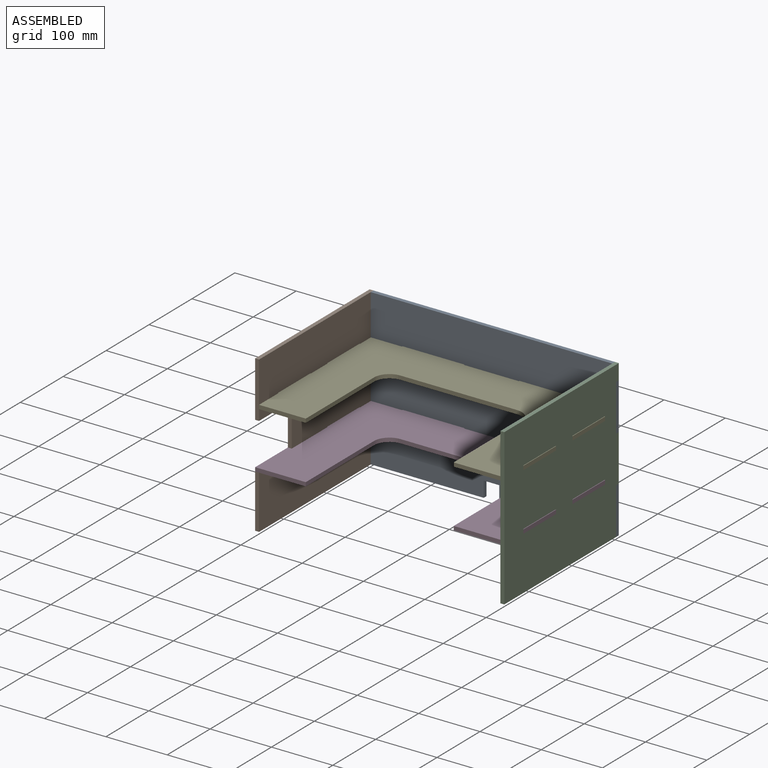
[diagram: assembled view]
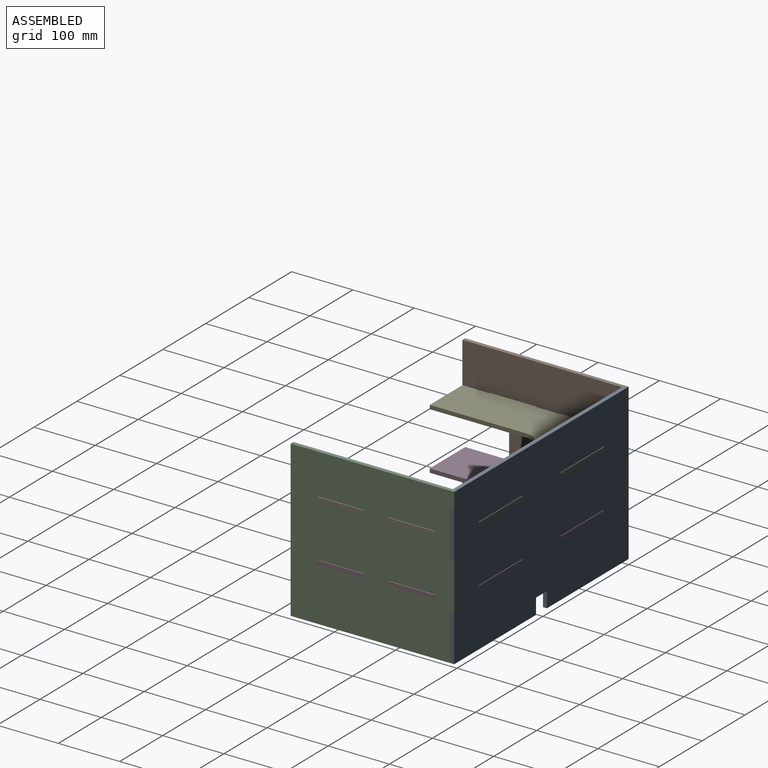
[diagram: assembled view, second angle]
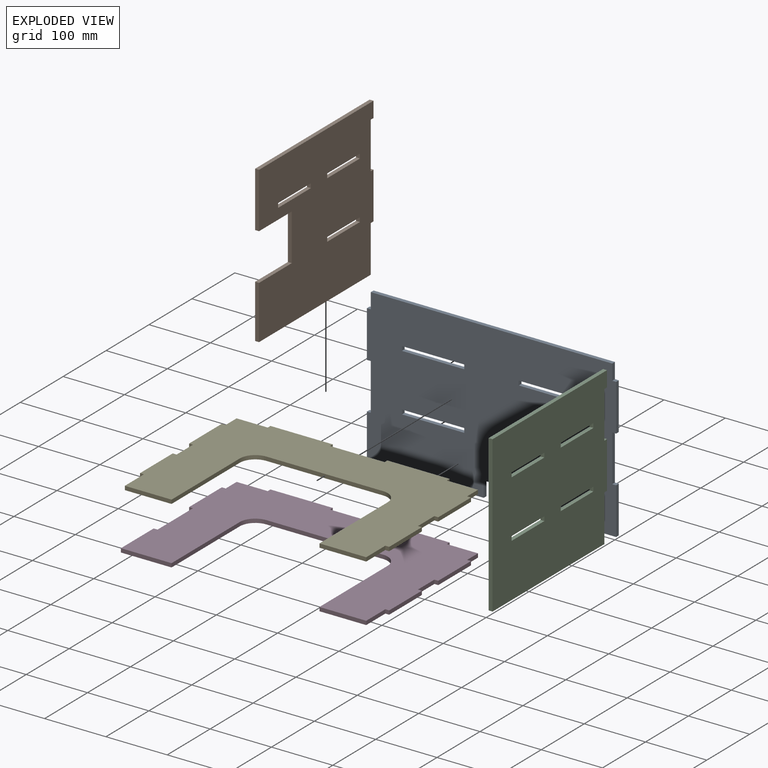
[diagram: exploded view]
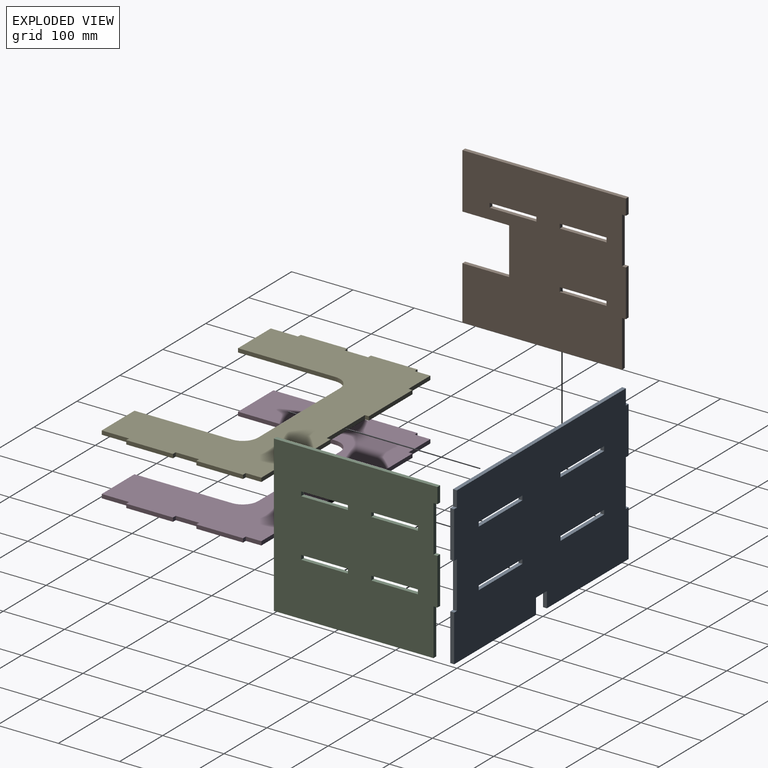
[diagram: exploded view, second angle]
ASSEMBLY  parts=5 mates=12
PART A: 38 faces, bbox 406.4x6.4x254 mm
  f0: plane 76.2x6.35mm, normal (-1,0,0), area 483.9mm2, adj f1,f35,f36,f37
  f1: plane 190.5x6.35mm, normal (0,0,-1), area 1209.7mm2, adj f0,f2,f36,f37
  f2: plane 25.4x6.35mm, normal (1,0,0), area 161.3mm2, adj f1,f3,f36,f37
  f3: plane 25.4x6.35mm, normal (0,0,-1), area 161.3mm2, adj f2,f4,f36,f37
  f4: plane 25.4x6.35mm, normal (-1,0,0), area 161.3mm2, adj f3,f5,f36,f37
  f5: plane 190.5x6.35mm, normal (0,0,-1), area 1209.7mm2, adj f4,f6,f36,f37
  f6: plane 76.2x6.35mm, normal (1,0,0), area 483.9mm2, adj f5,f7,f36,f37
  f7: plane 6.35x6.35mm, normal (0,0,1), area 40.3mm2, adj f6,f8,f36,f37
  f8: plane 76.2x6.35mm, normal (1,0,0), area 483.9mm2, adj f7,f9,f36,f37
  f9: plane 6.35x6.35mm, normal (0,0,-1), area 40.3mm2, adj f8,f10,f36,f37
  f10: plane 76.2x6.35mm, normal (1,0,0), area 483.9mm2, adj f9,f11,f36,f37
  f11: plane 6.35x6.35mm, normal (0,0,1), area 40.3mm2, adj f10,f12,f36,f37
  f12: plane 25.4x6.35mm, normal (1,0,0), area 161.3mm2, adj f11,f13,f36,f37
  f13: plane 393.7x6.35mm, normal (0,0,1), area 2500mm2, adj f12,f14,f36,f37
  f14: plane 25.4x6.35mm, normal (-1,0,0), area 161.3mm2, adj f13,f15,f36,f37
  f15: plane 6.35x6.35mm, normal (0,0,1), area 40.3mm2, adj f14,f16,f36,f37
  f16: plane 76.2x6.35mm, normal (-1,0,0), area 483.9mm2, adj f15,f17,f36,f37
  f17: plane 6.35x6.35mm, normal (0,0,-1), area 40.3mm2, adj f16,f18,f36,f37
  f18: plane 76.2x6.35mm, normal (-1,0,0), area 483.9mm2, adj f17,f35,f36,f37
  f19: plane 7.11x6.35mm, normal (1,0,0), area 45.2mm2, adj f20,f31,f36,f37
  f20: plane 101.6x6.35mm, normal (0,0,-1), area 645.2mm2, adj f19,f21,f36,f37
  f21: plane 7.11x6.35mm, normal (-1,0,0), area 45.2mm2, adj f20,f31,f36,f37
  f22: plane 7.11x6.35mm, normal (1,0,0), area 45.2mm2, adj f23,f32,f36,f37
  f23: plane 101.6x6.35mm, normal (0,0,-1), area 645.2mm2, adj f22,f24,f36,f37
  f24: plane 7.11x6.35mm, normal (-1,0,0), area 45.2mm2, adj f23,f32,f36,f37
  f25: plane 7.11x6.35mm, normal (1,0,0), area 45.2mm2, adj f26,f33,f36,f37
  f26: plane 101.6x6.35mm, normal (0,0,-1), area 645.2mm2, adj f25,f27,f36,f37
  f27: plane 7.11x6.35mm, normal (-1,0,0), area 45.2mm2, adj f26,f33,f36,f37
  f28: plane 7.11x6.35mm, normal (1,0,0), area 45.2mm2, adj f29,f34,f36,f37
  f29: plane 101.6x6.35mm, normal (0,0,-1), area 645.2mm2, adj f28,f30,f36,f37
  f30: plane 7.11x6.35mm, normal (-1,0,0), area 45.2mm2, adj f29,f34,f36,f37
  f31: plane 101.6x6.35mm, normal (0,0,1), area 645.2mm2, adj f19,f21,f36,f37
  f32: plane 101.6x6.35mm, normal (0,0,1), area 645.2mm2, adj f22,f24,f36,f37
  f33: plane 101.6x6.35mm, normal (0,0,1), area 645.2mm2, adj f25,f27,f36,f37
  f34: plane 101.6x6.35mm, normal (0,0,1), area 645.2mm2, adj f28,f30,f36,f37
  f35: plane 6.35x6.35mm, normal (0,0,1), area 40.3mm2, adj f0,f18,f36,f37
  f36: plane 406.4x254mm, normal (0,-1,0), area 98399.8mm2, adj f0,f1,f2,f3,f4,f5,f6,f7
  f37: plane 406.4x254mm, normal (0,1,0), area 98399.8mm2, adj f0,f1,f2,f3,f4,f5,f6,f7
PART B: 28 faces, bbox 266.7x6.4x254 mm
  f0: plane 7.11x6.35mm, normal (1,0,0), area 45.2mm2, adj f1,f25,f26,f27
  f1: plane 76.2x6.35mm, normal (0,0,-1), area 483.9mm2, adj f0,f2,f26,f27
  f2: plane 7.11x6.35mm, normal (-1,0,0), area 45.2mm2, adj f1,f25,f26,f27
  f3: plane 7.11x6.35mm, normal (1,0,0), area 45.2mm2, adj f4,f22,f26,f27
  f4: plane 76.2x6.35mm, normal (0,0,-1), area 483.9mm2, adj f3,f5,f26,f27
  f5: plane 7.11x6.35mm, normal (-1,0,0), area 45.2mm2, adj f4,f22,f26,f27
  f6: plane 7.11x6.35mm, normal (1,0,0), area 45.2mm2, adj f7,f23,f26,f27
  f7: plane 76.2x6.35mm, normal (0,0,-1), area 483.9mm2, adj f6,f8,f26,f27
  f8: plane 7.11x6.35mm, normal (-1,0,0), area 45.2mm2, adj f7,f23,f26,f27
  f9: plane 87.31x6.35mm, normal (-1,0,0), area 554.4mm2, adj f10,f24,f26,f27
  f10: plane 260.35x6.35mm, normal (0,0,-1), area 1653.2mm2, adj f9,f11,f26,f27
  f11: plane 76.2x6.35mm, normal (1,0,0), area 483.9mm2, adj f10,f12,f26,f27
  f12: plane 6.35x6.35mm, normal (0,0,-1), area 40.3mm2, adj f11,f13,f26,f27
  f13: plane 76.2x6.35mm, normal (1,0,0), area 483.9mm2, adj f12,f14,f26,f27
  f14: plane 6.35x6.35mm, normal (0,0,1), area 40.3mm2, adj f13,f15,f26,f27
  f15: plane 76.2x6.35mm, normal (1,0,0), area 483.9mm2, adj f14,f16,f26,f27
  f16: plane 6.35x6.35mm, normal (0,0,-1), area 40.3mm2, adj f15,f17,f26,f27
  f17: plane 25.4x6.35mm, normal (1,0,0), area 161.3mm2, adj f16,f18,f26,f27
  f18: plane 266.7x6.35mm, normal (0,0,1), area 1693.5mm2, adj f17,f19,f26,f27
  f19: plane 90.49x6.35mm, normal (-1,0,0), area 574.6mm2, adj f18,f20,f26,f27
  f20: plane 76.2x6.35mm, normal (0,0,-1), area 483.9mm2, adj f19,f21,f26,f27
  f21: plane 76.2x6.35mm, normal (-1,0,0), area 483.9mm2, adj f20,f24,f26,f27
  f22: plane 76.2x6.35mm, normal (0,0,1), area 483.9mm2, adj f3,f5,f26,f27
  f23: plane 76.2x6.35mm, normal (0,0,1), area 483.9mm2, adj f6,f8,f26,f27
  f24: plane 76.2x6.35mm, normal (0,0,1), area 483.9mm2, adj f9,f21,f26,f27
  f25: plane 76.2x6.35mm, normal (0,0,1), area 483.9mm2, adj f0,f2,f26,f27
  f26: plane 266.7x254mm, normal (0,-1,0), area 59341.8mm2, adj f0,f1,f2,f3,f4,f5,f6,f7
  f27: plane 266.7x254mm, normal (0,1,0), area 59341.8mm2, adj f0,f1,f2,f3,f4,f5,f6,f7
PART C: 28 faces, bbox 266.7x6.4x254 mm
  f0: plane 7.11x6.35mm, normal (1,0,0), area 45.2mm2, adj f1,f25,f26,f27
  f1: plane 76.2x6.35mm, normal (0,0,-1), area 483.9mm2, adj f0,f2,f26,f27
  f2: plane 7.11x6.35mm, normal (-1,0,0), area 45.2mm2, adj f1,f25,f26,f27
  f3: plane 7.11x6.35mm, normal (1,0,0), area 45.2mm2, adj f4,f21,f26,f27
  f4: plane 76.2x6.35mm, normal (0,0,-1), area 483.9mm2, adj f3,f5,f26,f27
  f5: plane 7.11x6.35mm, normal (-1,0,0), area 45.2mm2, adj f4,f21,f26,f27
  f6: plane 7.11x6.35mm, normal (1,0,0), area 45.2mm2, adj f7,f22,f26,f27
  f7: plane 76.2x6.35mm, normal (0,0,-1), area 483.9mm2, adj f6,f8,f26,f27
  f8: plane 7.11x6.35mm, normal (-1,0,0), area 45.2mm2, adj f7,f22,f26,f27
  f9: plane 7.11x6.35mm, normal (1,0,0), area 45.2mm2, adj f10,f23,f26,f27
  f10: plane 76.2x6.35mm, normal (0,0,-1), area 483.9mm2, adj f9,f11,f26,f27
  f11: plane 7.11x6.35mm, normal (-1,0,0), area 45.2mm2, adj f10,f23,f26,f27
  f12: plane 254x6.35mm, normal (-1,0,0), area 1612.9mm2, adj f13,f24,f26,f27
  f13: plane 260.35x6.35mm, normal (0,0,-1), area 1653.2mm2, adj f12,f14,f26,f27
  f14: plane 76.2x6.35mm, normal (1,0,0), area 483.9mm2, adj f13,f15,f26,f27
  f15: plane 6.35x6.35mm, normal (0,0,-1), area 40.3mm2, adj f14,f16,f26,f27
  f16: plane 76.2x6.35mm, normal (1,0,0), area 483.9mm2, adj f15,f17,f26,f27
  f17: plane 6.35x6.35mm, normal (0,0,1), area 40.3mm2, adj f16,f18,f26,f27
  f18: plane 76.2x6.35mm, normal (1,0,0), area 483.9mm2, adj f17,f19,f26,f27
  f19: plane 6.35x6.35mm, normal (0,0,-1), area 40.3mm2, adj f18,f20,f26,f27
  f20: plane 25.4x6.35mm, normal (1,0,0), area 161.3mm2, adj f19,f24,f26,f27
  f21: plane 76.2x6.35mm, normal (0,0,1), area 483.9mm2, adj f3,f5,f26,f27
  f22: plane 76.2x6.35mm, normal (0,0,1), area 483.9mm2, adj f6,f8,f26,f27
  f23: plane 76.2x6.35mm, normal (0,0,1), area 483.9mm2, adj f9,f11,f26,f27
  f24: plane 266.7x6.35mm, normal (0,0,1), area 1693.5mm2, adj f12,f20,f26,f27
  f25: plane 76.2x6.35mm, normal (0,0,1), area 483.9mm2, adj f0,f2,f26,f27
  f26: plane 266.7x254mm, normal (0,-1,0), area 64606.3mm2, adj f0,f1,f2,f3,f4,f5,f6,f7
  f27: plane 266.7x254mm, normal (0,1,0), area 64606.3mm2, adj f0,f1,f2,f3,f4,f5,f6,f7
PART D: 34 faces, bbox 406.4x6.4x266.7 mm
  f0: plane 6.35x6.35mm, normal (-1,0,0), area 40.3mm2, adj f1,f29,f30,f31
  f1: plane 50.8x6.35mm, normal (0,0,1), area 322.6mm2, adj f0,f2,f30,f31
  f2: plane 25.4x6.35mm, normal (-1,0,0), area 161.3mm2, adj f1,f3,f30,f31
  f3: plane 6.35x6.35mm, normal (0,0,1), area 40.3mm2, adj f2,f4,f30,f31
  f4: plane 76.2x6.35mm, normal (-1,0,0), area 483.9mm2, adj f3,f5,f30,f31
  f5: plane 6.35x6.35mm, normal (0,0,-1), area 40.3mm2, adj f4,f6,f30,f31
  f6: plane 82.55x6.35mm, normal (-1,0,0), area 524.2mm2, adj f5,f7,f30,f31
  f7: plane 6.35x6.35mm, normal (0,0,1), area 40.3mm2, adj f6,f8,f30,f31
  f8: plane 76.2x6.35mm, normal (-1,0,0), area 483.9mm2, adj f7,f9,f30,f31
  f9: plane 82.55x6.35mm, normal (0,0,-1), area 524.2mm2, adj f8,f10,f30,f31
  f10: plane 158.75x6.35mm, normal (1,0,0), area 1008.1mm2, adj f9,f30,f31,f32
  f11: plane 190.5x6.35mm, normal (0,0,-1), area 1209.7mm2, adj f30,f31,f32,f33
  f12: plane 158.75x6.35mm, normal (-1,0,0), area 1008.1mm2, adj f13,f30,f31,f33
  f13: plane 76.2x6.35mm, normal (0,0,-1), area 483.9mm2, adj f12,f14,f30,f31
  f14: plane 44.45x6.35mm, normal (1,0,0), area 282.3mm2, adj f13,f15,f30,f31
  f15: plane 6.35x6.35mm, normal (0,0,-1), area 40.3mm2, adj f14,f16,f30,f31
  f16: plane 76.2x6.35mm, normal (1,0,0), area 483.9mm2, adj f15,f17,f30,f31
  f17: plane 6.35x6.35mm, normal (0,0,1), area 40.3mm2, adj f16,f18,f30,f31
  f18: plane 38.1x6.35mm, normal (1,0,0), area 241.9mm2, adj f17,f19,f30,f31
  f19: plane 6.35x6.35mm, normal (0,0,-1), area 40.3mm2, adj f18,f20,f30,f31
  f20: plane 76.2x6.35mm, normal (1,0,0), area 483.9mm2, adj f19,f21,f30,f31
  f21: plane 6.35x6.35mm, normal (0,0,1), area 40.3mm2, adj f20,f22,f30,f31
  f22: plane 25.4x6.35mm, normal (1,0,0), area 161.3mm2, adj f21,f23,f30,f31
  f23: plane 50.8x6.35mm, normal (0,0,1), area 322.6mm2, adj f22,f24,f30,f31
  f24: plane 6.35x6.35mm, normal (1,0,0), area 40.3mm2, adj f23,f25,f30,f31
  f25: plane 101.6x6.35mm, normal (0,0,1), area 645.2mm2, adj f24,f26,f30,f31
  f26: plane 6.35x6.35mm, normal (-1,0,0), area 40.3mm2, adj f25,f27,f30,f31
  f27: plane 88.9x6.35mm, normal (0,0,1), area 564.5mm2, adj f26,f28,f30,f31
  f28: plane 6.35x6.35mm, normal (1,0,0), area 40.3mm2, adj f27,f29,f30,f31
  f29: plane 101.6x6.35mm, normal (0,0,1), area 645.2mm2, adj f0,f28,f30,f31
  f30: plane 406.4x266.7mm, normal (0,-1,0), area 61567.1mm2, adj f0,f1,f2,f3,f4,f5,f6,f7
  f31: plane 406.4x266.7mm, normal (0,1,0), area 61567.1mm2, adj f0,f1,f2,f3,f4,f5,f6,f7
  f32: cylinder r=25.4mm len=25.4mm, axis (0,-1,0), area 253.4mm2, adj f10,f11,f30,f31
  f33: cylinder r=25.4mm len=25.4mm, axis (0,-1,0), area 253.4mm2, adj f11,f12,f30,f31
PART E: 36 faces, bbox 406.4x6.4x266.7 mm
  f0: plane 6.35x6.35mm, normal (0,0,-1), area 40.3mm2, adj f1,f31,f32,f33
  f1: plane 44.45x6.35mm, normal (-1,0,0), area 282.3mm2, adj f0,f2,f32,f33
  f2: plane 76.2x6.35mm, normal (0,0,-1), area 483.9mm2, adj f1,f3,f32,f33
  f3: plane 158.75x6.35mm, normal (1,0,0), area 1008.1mm2, adj f2,f32,f33,f34
  f4: plane 190.5x6.35mm, normal (0,0,-1), area 1209.7mm2, adj f32,f33,f34,f35
  f5: plane 158.75x6.35mm, normal (-1,0,0), area 1008.1mm2, adj f6,f32,f33,f35
  f6: plane 76.2x6.35mm, normal (0,0,-1), area 483.9mm2, adj f5,f7,f32,f33
  f7: plane 44.45x6.35mm, normal (1,0,0), area 282.3mm2, adj f6,f8,f32,f33
  f8: plane 6.35x6.35mm, normal (0,0,-1), area 40.3mm2, adj f7,f9,f32,f33
  f9: plane 76.2x6.35mm, normal (1,0,0), area 483.9mm2, adj f8,f10,f32,f33
  f10: plane 6.35x6.35mm, normal (0,0,1), area 40.3mm2, adj f9,f11,f32,f33
  f11: plane 38.1x6.35mm, normal (1,0,0), area 241.9mm2, adj f10,f12,f32,f33
  f12: plane 6.35x6.35mm, normal (0,0,-1), area 40.3mm2, adj f11,f13,f32,f33
  f13: plane 76.2x6.35mm, normal (1,0,0), area 483.9mm2, adj f12,f14,f32,f33
  f14: plane 6.35x6.35mm, normal (0,0,1), area 40.3mm2, adj f13,f15,f32,f33
  f15: plane 25.4x6.35mm, normal (1,0,0), area 161.3mm2, adj f14,f16,f32,f33
  f16: plane 50.8x6.35mm, normal (0,0,1), area 322.6mm2, adj f15,f17,f32,f33
  f17: plane 6.35x6.35mm, normal (1,0,0), area 40.3mm2, adj f16,f18,f32,f33
  f18: plane 101.6x6.35mm, normal (0,0,1), area 645.2mm2, adj f17,f19,f32,f33
  f19: plane 6.35x6.35mm, normal (-1,0,0), area 40.3mm2, adj f18,f20,f32,f33
  f20: plane 88.9x6.35mm, normal (0,0,1), area 564.5mm2, adj f19,f21,f32,f33
  f21: plane 6.35x6.35mm, normal (1,0,0), area 40.3mm2, adj f20,f22,f32,f33
  f22: plane 101.6x6.35mm, normal (0,0,1), area 645.2mm2, adj f21,f23,f32,f33
  f23: plane 6.35x6.35mm, normal (-1,0,0), area 40.3mm2, adj f22,f24,f32,f33
  f24: plane 50.8x6.35mm, normal (0,0,1), area 322.6mm2, adj f23,f25,f32,f33
  f25: plane 25.4x6.35mm, normal (-1,0,0), area 161.3mm2, adj f24,f26,f32,f33
  f26: plane 6.35x6.35mm, normal (0,0,1), area 40.3mm2, adj f25,f27,f32,f33
  f27: plane 76.2x6.35mm, normal (-1,0,0), area 483.9mm2, adj f26,f28,f32,f33
  f28: plane 6.35x6.35mm, normal (0,0,-1), area 40.3mm2, adj f27,f29,f32,f33
  f29: plane 38.1x6.35mm, normal (-1,0,0), area 241.9mm2, adj f28,f30,f32,f33
  f30: plane 6.35x6.35mm, normal (0,0,1), area 40.3mm2, adj f29,f31,f32,f33
  f31: plane 76.2x6.35mm, normal (-1,0,0), area 483.9mm2, adj f0,f30,f32,f33
  f32: plane 406.4x266.7mm, normal (0,-1,0), area 61567.1mm2, adj f0,f1,f2,f3,f4,f5,f6,f7
  f33: plane 406.4x266.7mm, normal (0,1,0), area 61567.1mm2, adj f0,f1,f2,f3,f4,f5,f6,f7
  f34: cylinder r=25.4mm len=25.4mm, axis (0,-1,0), area 253.4mm2, adj f3,f4,f32,f33
  f35: cylinder r=25.4mm len=25.4mm, axis (0,-1,0), area 253.4mm2, adj f4,f5,f32,f33
PLACE A at identity fixed
PLACE B rot(axis=(0,0,1),90deg) t=(0,-266.7,0)mm
PLACE C rot(axis=(0,0,1),90deg) t=(400.05,-266.7,0)mm
PLACE D rot(axis=(-1,0,0),90deg) t=(0,-266.7,87.31)mm
PLACE E rot(axis=(-1,0,0),90deg) t=(0,-266.7,180.98)mm
MATE planar C.f20 <-> A.f37  axis (0,1,0) through (403.22,0,241.3)mm
MATE planar B.f18 <-> A.f13  axis (0,0,1) through (3.18,-133.35,254)mm
MATE planar C.f24 <-> A.f13  axis (0,0,1) through (403.22,-133.35,254)mm
MATE planar D.f29 <-> A.f37  axis (0,1,0) through (107.95,0,90.49)mm
MATE planar D.f4 <-> B.f27  axis (-1,0,0) through (0,-69.85,90.49)mm
MATE planar E.f22 <-> A.f37  axis (0,1,0) through (107.95,0,184.15)mm
MATE planar B.f17 <-> A.f37  axis (0,1,0) through (3.18,0,241.3)mm
MATE planar C.f26 <-> A.f10  axis (1,0,0) through (406.4,-135.51,126.83)mm
MATE planar B.f27 <-> A.f16  axis (-1,0,0) through (0,-126.85,126.64)mm
MATE planar E.f33 <-> C.f23  axis (0,0,-1) through (203.2,-105.72,180.98)mm
MATE planar E.f9 <-> C.f26  axis (1,0,0) through (406.4,-184.15,184.15)mm
MATE planar D.f31 <-> B.f24  axis (0,0,-1) through (31.75,-6.35,87.31)mm
